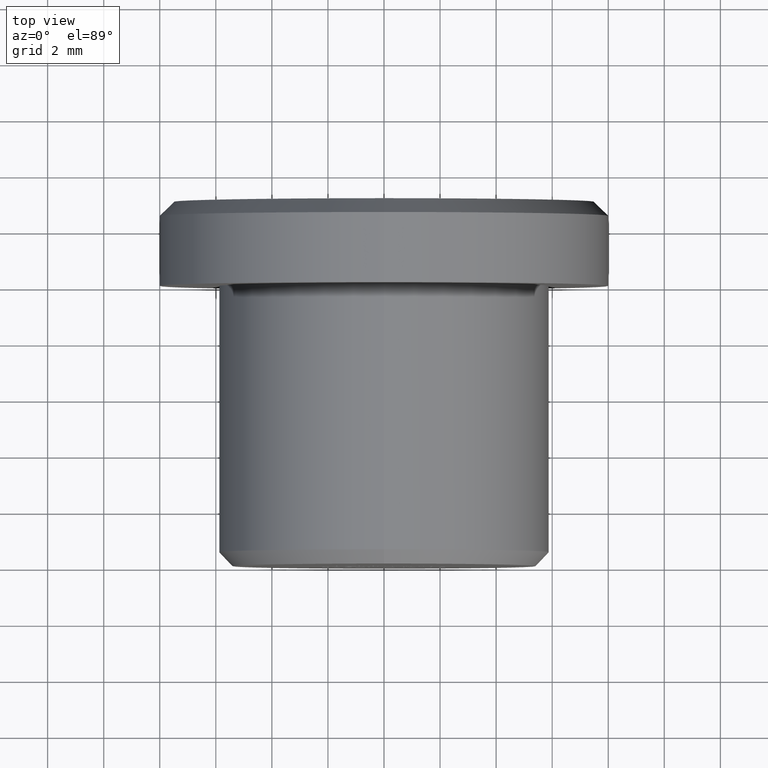
[diagram: clean part render]
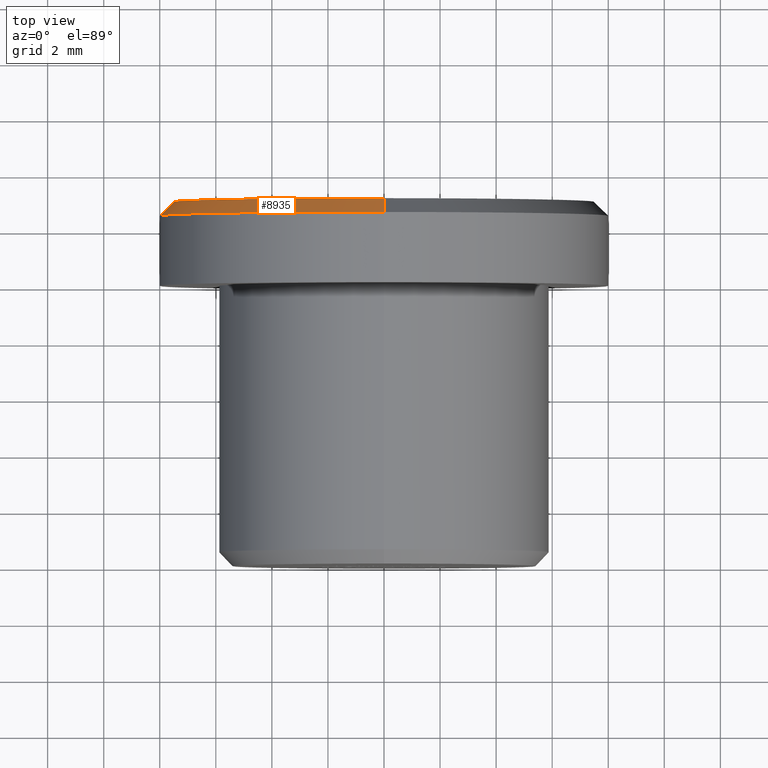
[diagram: same view with one face highlighted and labeled with its STEP entity id]
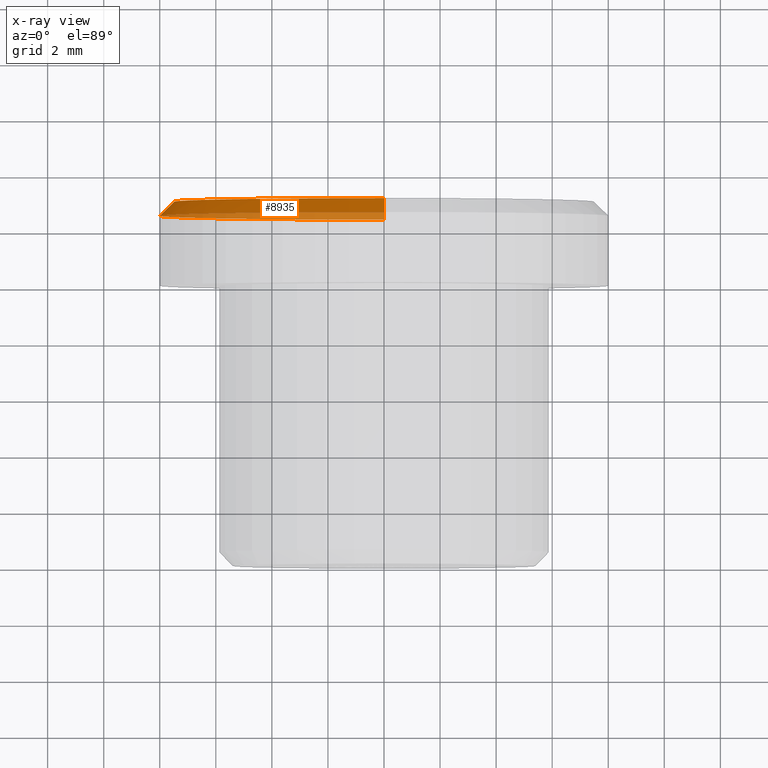
[diagram: x-ray of the same camera — body ghosted, the highlighted face saturated]
A machine part, top view. The second image highlights one B-rep face of the part: STEP entity #8935.
The next image is the same camera in x-ray: the body ghosted, the highlighted face saturated — about 31% of this face is hidden behind the body in this view.
In plain terms, the highlighted conical surface has half-angle 45 deg.
Its self-contained STEP definition (entity closure, byte-faithful):
#138 = DIRECTION ( 'NONE',  ( 8.659560562354948900E-017, -0.7071067811865463500, 0.7071067811865487900 ) ) ;
#1309 = CARTESIAN_POINT ( 'NONE',  ( 9.797174393178825700E-016, 12.49999999999999800, 8.000000000000000000 ) ) ;
#1339 = VERTEX_POINT ( 'NONE', #4602 ) ;
#1354 = DIRECTION ( 'NONE',  ( 0.0000000000000000000, -0.7071067811865463500, -0.7071067811865487900 ) ) ;
#1645 = AXIS2_PLACEMENT_3D ( 'NONE', #5263, #10872, #5217 ) ;
#1831 = CARTESIAN_POINT ( 'NONE',  ( 0.0000000000000000000, 13.00000000000000000, 0.0000000000000000000 ) ) ;
#1832 = EDGE_CURVE ( 'NONE', #9472, #8412, #11095, .T. ) ;
#2184 = VECTOR ( 'NONE', #138, 1000.000000000000000 ) ;
#2242 = DIRECTION ( 'NONE',  ( 0.0000000000000000000, 0.0000000000000000000, -1.000000000000000000 ) ) ;
#2491 = VERTEX_POINT ( 'NONE', #12313 ) ;
#2782 = EDGE_LOOP ( 'NONE', ( #12890, #6105, #7966, #7222 ) ) ;
#4333 = LINE ( 'NONE', #1309, #2184 ) ;
#4602 = CARTESIAN_POINT ( 'NONE',  ( 0.0000000000000000000, 12.49999999999999800, -8.000000000000000000 ) ) ;
#5217 = DIRECTION ( 'NONE',  ( 0.0000000000000000000, 0.0000000000000000000, 1.000000000000000000 ) ) ;
#5263 = CARTESIAN_POINT ( 'NONE',  ( 0.0000000000000000000, 12.49999999999999800, 0.0000000000000000000 ) ) ;
#6105 = ORIENTED_EDGE ( 'NONE', *, *, #1832, .F. ) ;
#6270 = CARTESIAN_POINT ( 'NONE',  ( 0.0000000000000000000, 13.00000000000000000, -7.499999999999998200 ) ) ;
#6910 = DIRECTION ( 'NONE',  ( -0.0000000000000000000, -1.000000000000000000, -0.0000000000000000000 ) ) ;
#6981 = CARTESIAN_POINT ( 'NONE',  ( 9.491012693391985800E-016, 13.00000000000000000, 7.499999999999998200 ) ) ;
#7222 = ORIENTED_EDGE ( 'NONE', *, *, #11141, .F. ) ;
#7877 = CARTESIAN_POINT ( 'NONE',  ( 0.0000000000000000000, 12.49999999999999800, 0.0000000000000000000 ) ) ;
#7966 = ORIENTED_EDGE ( 'NONE', *, *, #9868, .T. ) ;
#8187 = CARTESIAN_POINT ( 'NONE',  ( 0.0000000000000000000, 12.49999999999999800, -8.000000000000000000 ) ) ;
#8412 = VERTEX_POINT ( 'NONE', #6981 ) ;
#8556 = EDGE_CURVE ( 'NONE', #8412, #2491, #4333, .T. ) ;
#8935 = ADVANCED_FACE ( 'NONE', ( #13835 ), #10836, .T. ) ;
#9472 = VERTEX_POINT ( 'NONE', #6270 ) ;
#9690 = DIRECTION ( 'NONE',  ( 0.0000000000000000000, 1.000000000000000000, 0.0000000000000000000 ) ) ;
#9766 = VECTOR ( 'NONE', #1354, 1000.000000000000000 ) ;
#9868 = EDGE_CURVE ( 'NONE', #9472, #1339, #12802, .T. ) ;
#10282 = CIRCLE ( 'NONE', #1645, 8.000000000000000000 ) ;
#10836 = CONICAL_SURFACE ( 'NONE', #11397, 8.000000000000000000, 0.7853981633974500600 ) ;
#10872 = DIRECTION ( 'NONE',  ( -0.0000000000000000000, -1.000000000000000000, -0.0000000000000000000 ) ) ;
#11095 = CIRCLE ( 'NONE', #14176, 7.499999999999998200 ) ;
#11141 = EDGE_CURVE ( 'NONE', #2491, #1339, #10282, .T. ) ;
#11397 = AXIS2_PLACEMENT_3D ( 'NONE', #7877, #6910, #2242 ) ;
#12313 = CARTESIAN_POINT ( 'NONE',  ( 9.797174393178825700E-016, 12.49999999999999800, 8.000000000000000000 ) ) ;
#12802 = LINE ( 'NONE', #8187, #9766 ) ;
#12890 = ORIENTED_EDGE ( 'NONE', *, *, #8556, .F. ) ;
#13161 = DIRECTION ( 'NONE',  ( 0.0000000000000000000, 0.0000000000000000000, 1.000000000000000000 ) ) ;
#13835 = FACE_OUTER_BOUND ( 'NONE', #2782, .T. ) ;
#14176 = AXIS2_PLACEMENT_3D ( 'NONE', #1831, #9690, #13161 ) ;